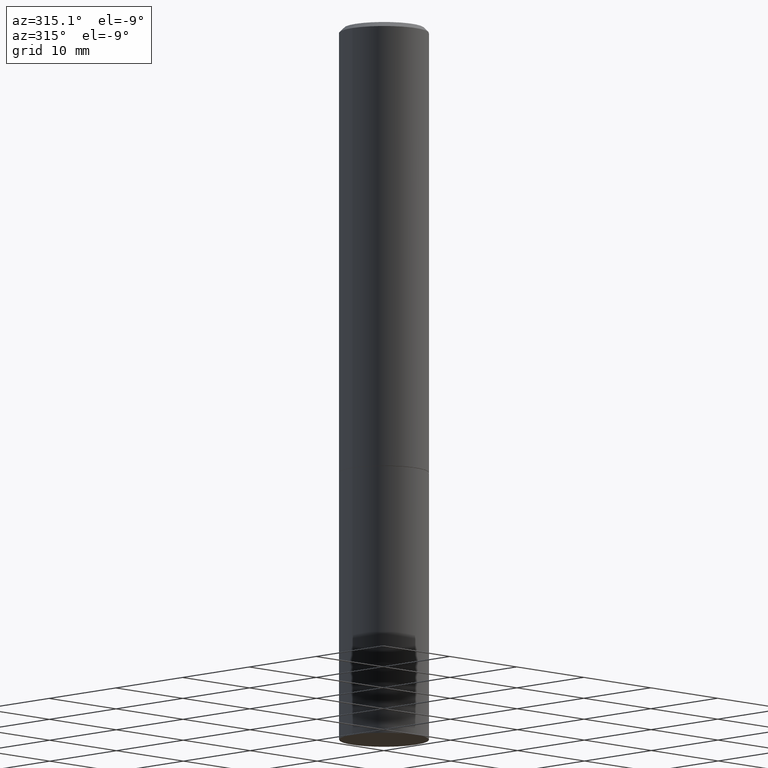
[diagram: clean part render]
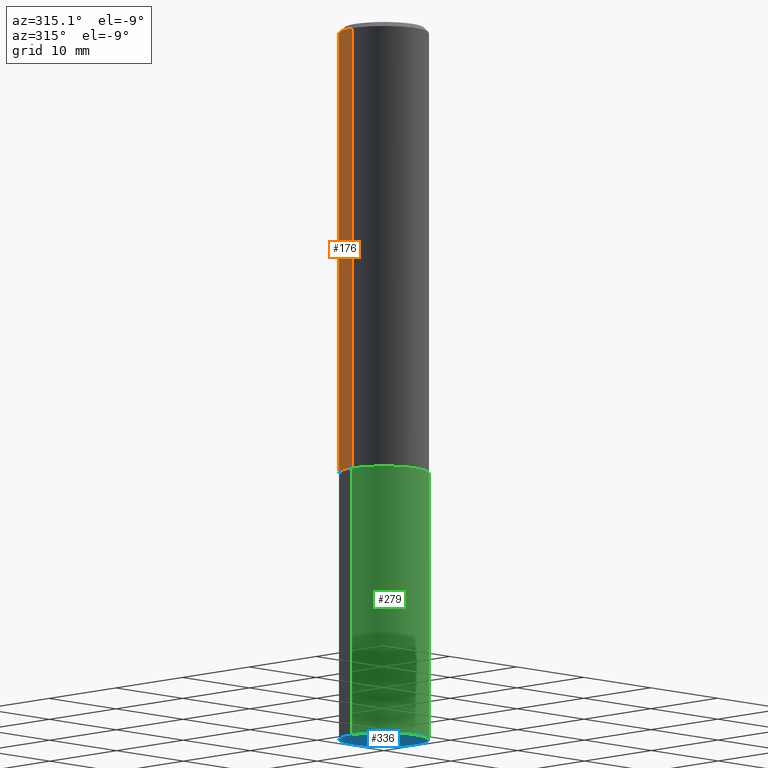
[diagram: same view with three faces highlighted in distinct colors, each labeled with its STEP entity id]
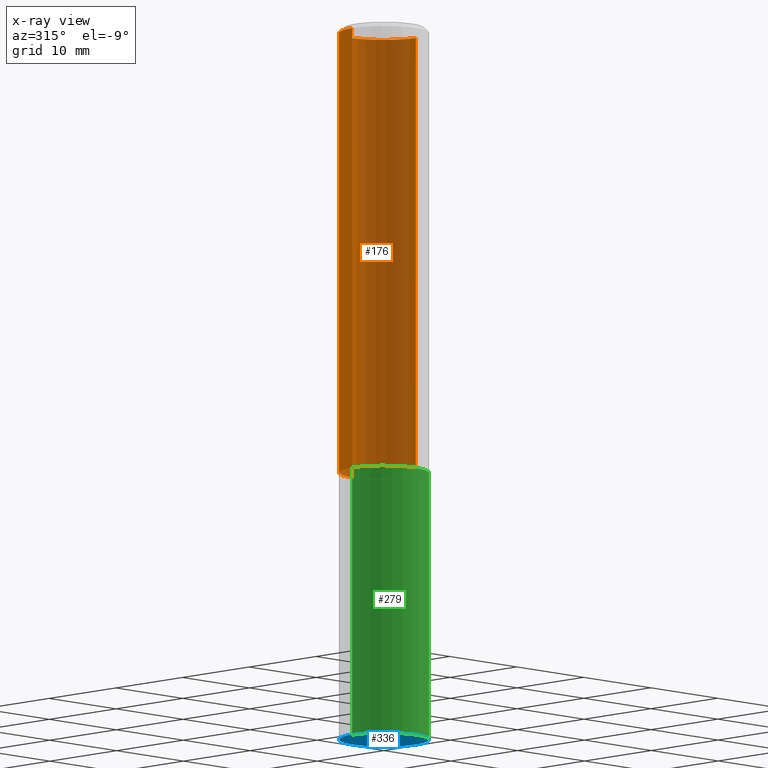
[diagram: x-ray of the same camera — body ghosted, the three highlighted faces saturated]
A machine part, auxiliary view with three faces highlighted in distinct colors.
The next image is the same camera in x-ray (body ghosted, the three faces saturated) — at least one of them is partly hidden behind the body in this view.
Their STEP definitions:

[orange] entity #176 — the highlighted cylindrical surface (partial cylindrical patch) has radius 4.7625 mm, axis along (-0, 0, 1).
#6 = ORIENTED_EDGE ( 'NONE', *, *, #144, .T. ) ;
#7 = AXIS2_PLACEMENT_3D ( 'NONE', #55, #22, #329 ) ;
#13 = ORIENTED_EDGE ( 'NONE', *, *, #34, .T. ) ;
#20 = FACE_OUTER_BOUND ( 'NONE', #60, .T. ) ;
#22 = DIRECTION ( 'NONE',  ( -2.445468806185136597E-29, 3.491481338843145583E-15, 1.000000000000000000 ) ) ;
#34 = EDGE_CURVE ( 'NONE', #130, #246, #68, .T. ) ;
#43 = VERTEX_POINT ( 'NONE', #282 ) ;
#49 = DIRECTION ( 'NONE',  ( -2.445468806185136877E-29, 3.491481338843145188E-15, 1.000000000000000000 ) ) ;
#52 = DIRECTION ( 'NONE',  ( 1.000000000000000000, -6.982962677686266711E-15, 0.000000000000000000 ) ) ;
#55 = CARTESIAN_POINT ( 'NONE',  ( 0.000000000000000000, 0.000000000000000000, 0.000000000000000000 ) ) ;
#59 = DIRECTION ( 'NONE',  ( -2.445468806185136877E-29, 3.491481338843145188E-15, 1.000000000000000000 ) ) ;
#60 = EDGE_LOOP ( 'NONE', ( #13, #6, #162, #97 ) ) ;
#61 = CIRCLE ( 'NONE', #234, 0.1874999999999997780 ) ;
#68 = CIRCLE ( 'NONE', #305, 0.1875000000000000278 ) ;
#74 = EDGE_CURVE ( 'NONE', #130, #43, #202, .T. ) ;
#79 = VERTEX_POINT ( 'NONE', #134 ) ;
#97 = ORIENTED_EDGE ( 'NONE', *, *, #74, .F. ) ;
#130 = VERTEX_POINT ( 'NONE', #151 ) ;
#134 = CARTESIAN_POINT ( 'NONE',  ( -0.1874999999999997780, 1.239475875289310330E-15, -0.02000000000000004205 ) ) ;
#137 = DIRECTION ( 'NONE',  ( 1.000000000000000000, -6.982962677686265133E-15, 0.000000000000000000 ) ) ;
#144 = EDGE_CURVE ( 'NONE', #246, #79, #315, .T. ) ;
#151 = CARTESIAN_POINT ( 'NONE',  ( 0.1875000000000000278, -7.852341531058230708E-15, -1.874000000000000110 ) ) ;
#162 = ORIENTED_EDGE ( 'NONE', *, *, #256, .F. ) ;
#170 = CYLINDRICAL_SURFACE ( 'NONE', #7, 0.1874999999999999167 ) ;
#171 = VECTOR ( 'NONE', #49, 39.37007874015748143 ) ;
#176 = ADVANCED_FACE ( 'NONE', ( #20 ), #170, .T. ) ;
#196 = CARTESIAN_POINT ( 'NONE',  ( -0.1874999999999999722, -1.974165198334270073E-15, -1.874000000000000110 ) ) ;
#202 = LINE ( 'NONE', #355, #206 ) ;
#206 = VECTOR ( 'NONE', #59, 39.37007874015748143 ) ;
#231 = CARTESIAN_POINT ( 'NONE',  ( 4.582808542790945516E-29, -6.543036028992054911E-15, -1.874000000000000110 ) ) ;
#234 = AXIS2_PLACEMENT_3D ( 'NONE', #281, #325, #137 ) ;
#246 = VERTEX_POINT ( 'NONE', #196 ) ;
#256 = EDGE_CURVE ( 'NONE', #43, #79, #61, .T. ) ;
#281 = CARTESIAN_POINT ( 'NONE',  ( 4.890937612370283668E-31, -6.982962677686305168E-17, -0.02000000000000004205 ) ) ;
#282 = CARTESIAN_POINT ( 'NONE',  ( 0.1874999999999997780, -1.356173001359023691E-15, -0.02000000000000004205 ) ) ;
#297 = CARTESIAN_POINT ( 'NONE',  ( -0.1874999999999999167, 1.332267629550187257E-15, -9.223003294227943787E-30 ) ) ;
#305 = AXIS2_PLACEMENT_3D ( 'NONE', #231, #309, #52 ) ;
#309 = DIRECTION ( 'NONE',  ( -2.445468806185136597E-29, 3.491481338843145583E-15, 1.000000000000000000 ) ) ;
#315 = LINE ( 'NONE', #297, #171 ) ;
#325 = DIRECTION ( 'NONE',  ( -2.445468806185136597E-29, 3.491481338843145583E-15, 1.000000000000000000 ) ) ;
#329 = DIRECTION ( 'NONE',  ( 1.000000000000000000, -6.982962677686265922E-15, 4.876176775795935793E-29 ) ) ;
#355 = CARTESIAN_POINT ( 'NONE',  ( 0.1874999999999999167, -1.309305502066174219E-15, 9.142831454617375408E-30 ) ) ;

[blue] entity #336 — the highlighted planar face has unit normal (0, -0, -1).
#15 = VERTEX_POINT ( 'NONE', #189 ) ;
#36 = FACE_OUTER_BOUND ( 'NONE', #215, .T. ) ;
#54 = EDGE_CURVE ( 'NONE', #15, #320, #146, .T. ) ;
#102 = ORIENTED_EDGE ( 'NONE', *, *, #54, .F. ) ;
#113 = DIRECTION ( 'NONE',  ( 1.000000000000000000, -6.982962677686261189E-15, 0.000000000000000000 ) ) ;
#119 = AXIS2_PLACEMENT_3D ( 'NONE', #138, #261, #258 ) ;
#138 = CARTESIAN_POINT ( 'NONE',  ( 7.336406418555409790E-29, -1.047444401652943635E-14, -3.000000000000000444 ) ) ;
#146 = CIRCLE ( 'NONE', #219, 0.1875000000000000278 ) ;
#188 = EDGE_CURVE ( 'NONE', #320, #15, #287, .T. ) ;
#189 = CARTESIAN_POINT ( 'NONE',  ( -0.1875000000000000278, -7.178218133879978893E-15, -3.000000000000000444 ) ) ;
#215 = EDGE_LOOP ( 'NONE', ( #338, #102 ) ) ;
#219 = AXIS2_PLACEMENT_3D ( 'NONE', #337, #289, #113 ) ;
#237 = DIRECTION ( 'NONE',  ( -1.000000000000000000, 6.982962677686265922E-15, -4.876176775795935793E-29 ) ) ;
#247 = AXIS2_PLACEMENT_3D ( 'NONE', #295, #301, #237 ) ;
#258 = DIRECTION ( 'NONE',  ( 1.000000000000000000, -6.982962677686261189E-15, 0.000000000000000000 ) ) ;
#261 = DIRECTION ( 'NONE',  ( -2.445468806185136597E-29, 3.491481338843145583E-15, 1.000000000000000000 ) ) ;
#268 = PLANE ( 'NONE',  #247 ) ;
#287 = CIRCLE ( 'NONE', #119, 0.1875000000000000278 ) ;
#289 = DIRECTION ( 'NONE',  ( -2.445468806185136597E-29, 3.491481338843145583E-15, 1.000000000000000000 ) ) ;
#295 = CARTESIAN_POINT ( 'NONE',  ( 1.309305502066248372E-15, 0.1874999999999895361, -3.000000000000000888 ) ) ;
#301 = DIRECTION ( 'NONE',  ( 2.438088387897960049E-29, -3.491481338843145188E-15, -1.000000000000000000 ) ) ;
#318 = CARTESIAN_POINT ( 'NONE',  ( 0.1875000000000000278, -1.178374951859561136E-14, -3.000000000000000444 ) ) ;
#320 = VERTEX_POINT ( 'NONE', #318 ) ;
#336 = ADVANCED_FACE ( 'NONE', ( #36 ), #268, .T. ) ;
#337 = CARTESIAN_POINT ( 'NONE',  ( 7.336406418555409790E-29, -1.047444401652943635E-14, -3.000000000000000444 ) ) ;
#338 = ORIENTED_EDGE ( 'NONE', *, *, #188, .F. ) ;

[green] entity #279 — the highlighted cylindrical surface (partial cylindrical patch) has radius 4.7625 mm, axis along (-0, 0, 1).
#3 = AXIS2_PLACEMENT_3D ( 'NONE', #56, #360, #201 ) ;
#15 = VERTEX_POINT ( 'NONE', #189 ) ;
#19 = EDGE_CURVE ( 'NONE', #15, #348, #299, .T. ) ;
#28 = CARTESIAN_POINT ( 'NONE',  ( 0.1875000000000000278, -7.855833012397073715E-15, -1.875000000000000000 ) ) ;
#38 = DIRECTION ( 'NONE',  ( -2.445468806185136597E-29, 3.491481338843145583E-15, 1.000000000000000000 ) ) ;
#39 = EDGE_LOOP ( 'NONE', ( #122, #107, #166, #235 ) ) ;
#45 = CARTESIAN_POINT ( 'NONE',  ( -0.1875000000000000278, 1.332267629550188046E-15, -9.223003294227947991E-30 ) ) ;
#54 = EDGE_CURVE ( 'NONE', #15, #320, #146, .T. ) ;
#56 = CARTESIAN_POINT ( 'NONE',  ( 0.000000000000000000, 0.000000000000000000, 0.000000000000000000 ) ) ;
#103 = CARTESIAN_POINT ( 'NONE',  ( -0.1875000000000000278, -7.178218133879978893E-15, -1.875000000000000000 ) ) ;
#107 = ORIENTED_EDGE ( 'NONE', *, *, #54, .T. ) ;
#112 = CYLINDRICAL_SURFACE ( 'NONE', #3, 0.1875000000000000278 ) ;
#113 = DIRECTION ( 'NONE',  ( 1.000000000000000000, -6.982962677686261189E-15, 0.000000000000000000 ) ) ;
#122 = ORIENTED_EDGE ( 'NONE', *, *, #19, .F. ) ;
#146 = CIRCLE ( 'NONE', #219, 0.1875000000000000278 ) ;
#149 = CIRCLE ( 'NONE', #203, 0.1875000000000000278 ) ;
#150 = EDGE_CURVE ( 'NONE', #320, #218, #163, .T. ) ;
#159 = DIRECTION ( 'NONE',  ( -2.445468806185136877E-29, 3.491481338843145188E-15, 1.000000000000000000 ) ) ;
#163 = LINE ( 'NONE', #238, #359 ) ;
#166 = ORIENTED_EDGE ( 'NONE', *, *, #150, .T. ) ;
#189 = CARTESIAN_POINT ( 'NONE',  ( -0.1875000000000000278, -7.178218133879978893E-15, -3.000000000000000444 ) ) ;
#201 = DIRECTION ( 'NONE',  ( 1.000000000000000000, -6.982962677686265922E-15, 4.876176775795935793E-29 ) ) ;
#203 = AXIS2_PLACEMENT_3D ( 'NONE', #209, #38, #323 ) ;
#209 = CARTESIAN_POINT ( 'NONE',  ( 4.585254011597131119E-29, -6.546527510330898707E-15, -1.875000000000000000 ) ) ;
#218 = VERTEX_POINT ( 'NONE', #28 ) ;
#219 = AXIS2_PLACEMENT_3D ( 'NONE', #337, #289, #113 ) ;
#235 = ORIENTED_EDGE ( 'NONE', *, *, #357, .F. ) ;
#238 = CARTESIAN_POINT ( 'NONE',  ( 0.1875000000000000278, -1.309305502066175008E-15, 9.142831454617381013E-30 ) ) ;
#273 = DIRECTION ( 'NONE',  ( -2.445468806185136877E-29, 3.491481338843145188E-15, 1.000000000000000000 ) ) ;
#279 = ADVANCED_FACE ( 'NONE', ( #356 ), #112, .T. ) ;
#289 = DIRECTION ( 'NONE',  ( -2.445468806185136597E-29, 3.491481338843145583E-15, 1.000000000000000000 ) ) ;
#299 = LINE ( 'NONE', #45, #339 ) ;
#318 = CARTESIAN_POINT ( 'NONE',  ( 0.1875000000000000278, -1.178374951859561136E-14, -3.000000000000000444 ) ) ;
#320 = VERTEX_POINT ( 'NONE', #318 ) ;
#323 = DIRECTION ( 'NONE',  ( 1.000000000000000000, -6.982962677686266711E-15, 0.000000000000000000 ) ) ;
#337 = CARTESIAN_POINT ( 'NONE',  ( 7.336406418555409790E-29, -1.047444401652943635E-14, -3.000000000000000444 ) ) ;
#339 = VECTOR ( 'NONE', #159, 39.37007874015748143 ) ;
#348 = VERTEX_POINT ( 'NONE', #103 ) ;
#356 = FACE_OUTER_BOUND ( 'NONE', #39, .T. ) ;
#357 = EDGE_CURVE ( 'NONE', #348, #218, #149, .T. ) ;
#359 = VECTOR ( 'NONE', #273, 39.37007874015748143 ) ;
#360 = DIRECTION ( 'NONE',  ( -2.445468806185136597E-29, 3.491481338843145583E-15, 1.000000000000000000 ) ) ;